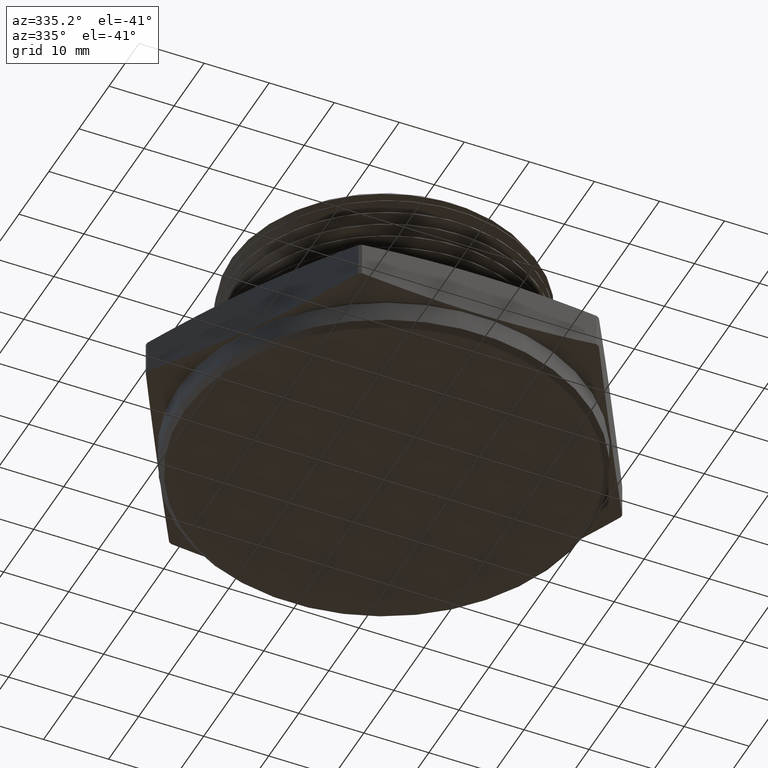
[diagram: clean part render]
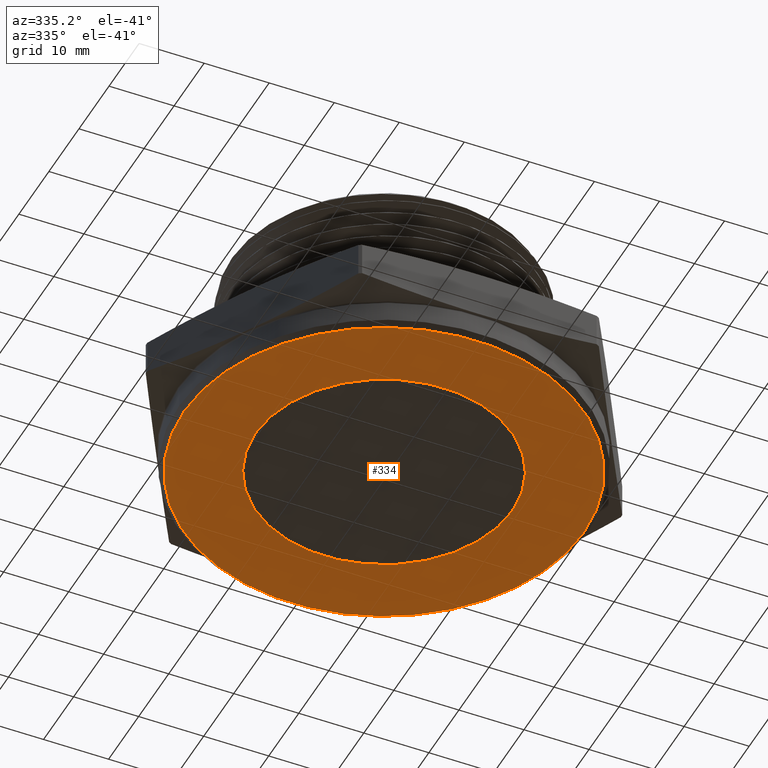
[diagram: same view with one face highlighted and labeled with its STEP entity id]
A machine part, auxiliary view. The second image highlights one B-rep face of the part: STEP entity #334.
In plain terms, the highlighted planar face has unit normal (0, 0, -1).
Its self-contained STEP definition (entity closure, byte-faithful):
#21 = VERTEX_POINT ( 'NONE', #7777 ) ;
#115 = EDGE_CURVE ( 'NONE', #693, #697, #5142, .T. ) ;
#116 = EDGE_CURVE ( 'NONE', #21, #692, #5145, .T. ) ;
#199 = EDGE_CURVE ( 'NONE', #692, #21, #434, .T. ) ;
#200 = EDGE_CURVE ( 'NONE', #697, #693, #436, .T. ) ;
#249 = AXIS2_PLACEMENT_3D ( 'NONE', #7286, #7285, #7284 ) ;
#250 = AXIS2_PLACEMENT_3D ( 'NONE', #7281, #7280, #7279 ) ;
#273 = AXIS2_PLACEMENT_3D ( 'NONE', #3694, #3695, #3696 ) ;
#274 = AXIS2_PLACEMENT_3D ( 'NONE', #3699, #3700, #3701 ) ;
#298 = AXIS2_PLACEMENT_3D ( 'NONE', #5220, #5219, #5223 ) ;
#334 = ADVANCED_FACE ( 'NONE', ( #498, #461 ), #5221, .T. ) ;
#434 = CIRCLE ( 'NONE', #273, 0.7769999999999999100 ) ;
#436 = CIRCLE ( 'NONE', #274, 1.210000000000000000 ) ;
#461 = FACE_BOUND ( 'NONE', #5033, .T. ) ;
#498 = FACE_OUTER_BOUND ( 'NONE', #5032, .T. ) ;
#692 = VERTEX_POINT ( 'NONE', #3580 ) ;
#693 = VERTEX_POINT ( 'NONE', #3581 ) ;
#697 = VERTEX_POINT ( 'NONE', #3585 ) ;
#3580 = CARTESIAN_POINT ( 'NONE',  ( 0.7769999999999999100, 0.0000000000000000000, -0.1600000000000000000 ) ) ;
#3581 = CARTESIAN_POINT ( 'NONE',  ( -1.210000000000000000, 1.500192328955507700E-016, -0.1600000000000000000 ) ) ;
#3585 = CARTESIAN_POINT ( 'NONE',  ( 1.210000000000000000, 0.0000000000000000000, -0.1600000000000000000 ) ) ;
#3694 = CARTESIAN_POINT ( 'NONE',  ( 1.224646799147352600E-018, 0.0000000000000000000, -0.1600000000000000000 ) ) ;
#3695 = DIRECTION ( 'NONE',  ( -2.307956700049595900E-032, -0.0000000000000000000, 1.000000000000000000 ) ) ;
#3696 = DIRECTION ( 'NONE',  ( 1.000000000000000000, 0.0000000000000000000, 0.0000000000000000000 ) ) ;
#3699 = CARTESIAN_POINT ( 'NONE',  ( 0.0000000000000000000, 0.0000000000000000000, -0.1600000000000000000 ) ) ;
#3700 = DIRECTION ( 'NONE',  ( 0.0000000000000000000, 0.0000000000000000000, -1.000000000000000000 ) ) ;
#3701 = DIRECTION ( 'NONE',  ( -1.000000000000000000, 0.0000000000000000000, 0.0000000000000000000 ) ) ;
#4879 = ORIENTED_EDGE ( 'NONE', *, *, #115, .T. ) ;
#4880 = ORIENTED_EDGE ( 'NONE', *, *, #199, .T. ) ;
#4881 = ORIENTED_EDGE ( 'NONE', *, *, #116, .T. ) ;
#5032 = EDGE_LOOP ( 'NONE', ( #7496, #4879 ) ) ;
#5033 = EDGE_LOOP ( 'NONE', ( #4880, #4881 ) ) ;
#5142 = CIRCLE ( 'NONE', #249, 1.210000000000000000 ) ;
#5145 = CIRCLE ( 'NONE', #250, 0.7769999999999999100 ) ;
#5219 = DIRECTION ( 'NONE',  ( 0.0000000000000000000, 0.0000000000000000000, -1.000000000000000000 ) ) ;
#5220 = CARTESIAN_POINT ( 'NONE',  ( 0.0000000000000000000, 0.0000000000000000000, -0.1600000000000000000 ) ) ;
#5221 = PLANE ( 'NONE',  #298 ) ;
#5223 = DIRECTION ( 'NONE',  ( -1.000000000000000000, 0.0000000000000000000, -0.0000000000000000000 ) ) ;
#7279 = DIRECTION ( 'NONE',  ( 1.000000000000000000, 0.0000000000000000000, 0.0000000000000000000 ) ) ;
#7280 = DIRECTION ( 'NONE',  ( -2.307956700049595900E-032, -0.0000000000000000000, 1.000000000000000000 ) ) ;
#7281 = CARTESIAN_POINT ( 'NONE',  ( 1.224646799147352600E-018, 0.0000000000000000000, -0.1600000000000000000 ) ) ;
#7284 = DIRECTION ( 'NONE',  ( -1.000000000000000000, 0.0000000000000000000, 0.0000000000000000000 ) ) ;
#7285 = DIRECTION ( 'NONE',  ( 0.0000000000000000000, 0.0000000000000000000, -1.000000000000000000 ) ) ;
#7286 = CARTESIAN_POINT ( 'NONE',  ( 0.0000000000000000000, 0.0000000000000000000, -0.1600000000000000000 ) ) ;
#7496 = ORIENTED_EDGE ( 'NONE', *, *, #200, .T. ) ;
#7777 = CARTESIAN_POINT ( 'NONE',  ( -0.7769999999999999100, 9.515505629374934300E-017, -0.1600000000000000000 ) ) ;